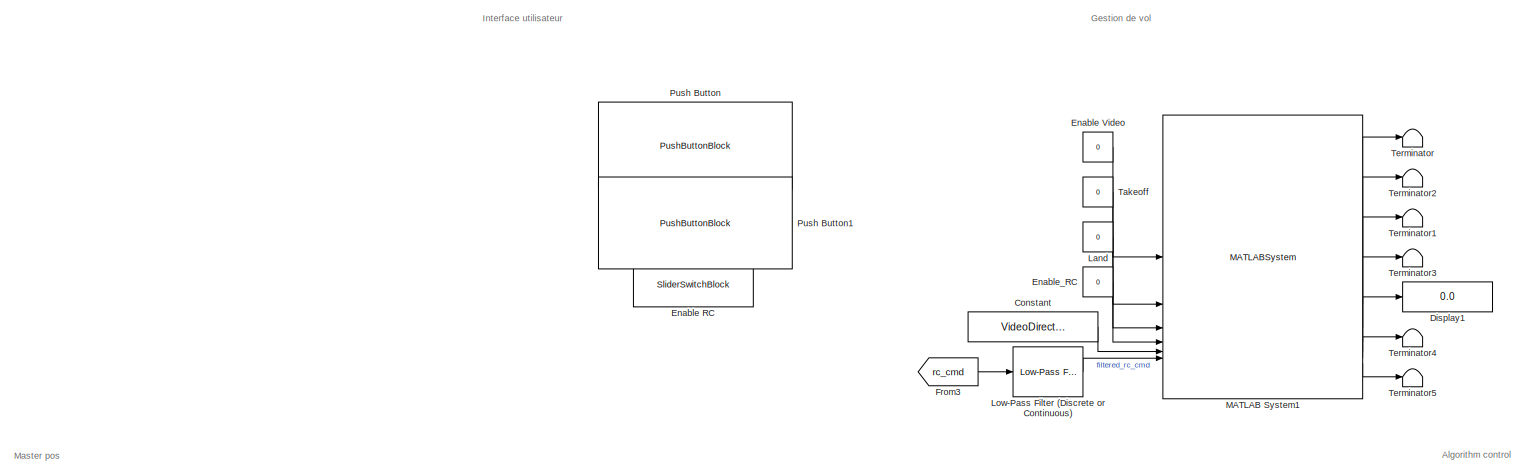
[diagram: root canvas - part 1/3, top center region]
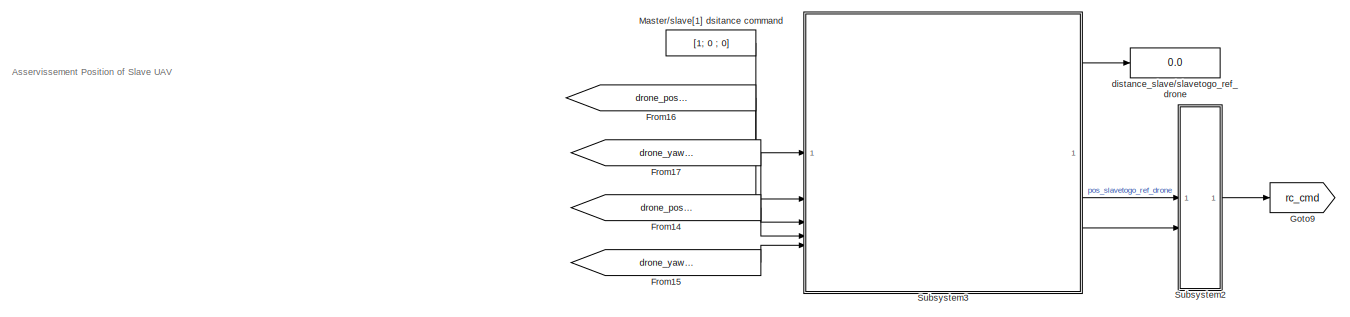
[diagram: root canvas - part 2/3, middle right region]
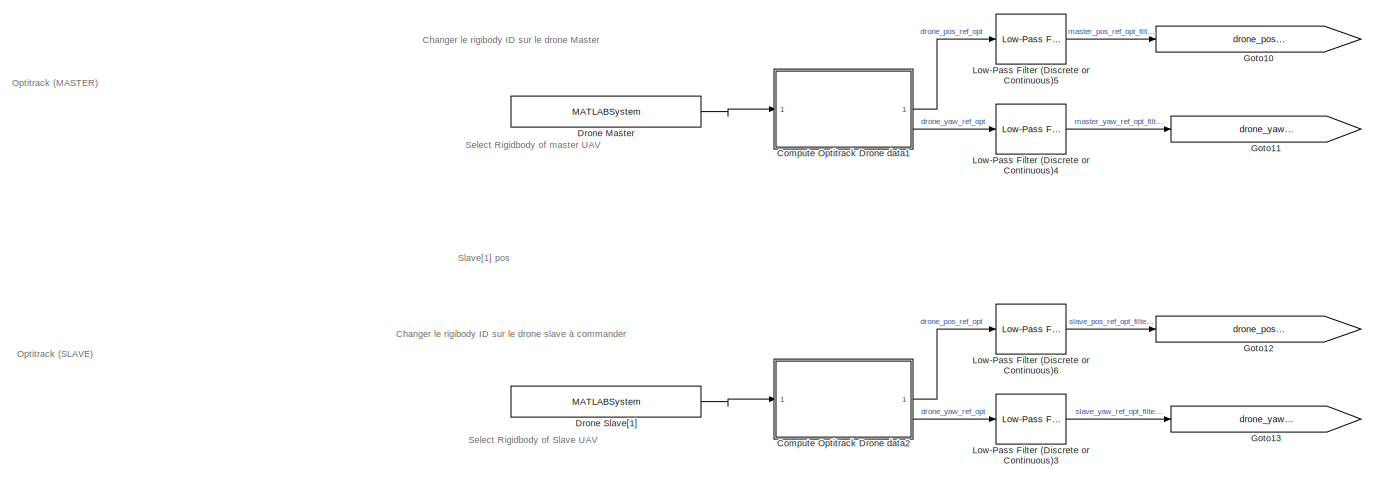
[diagram: root canvas - part 3/3, bottom left region]
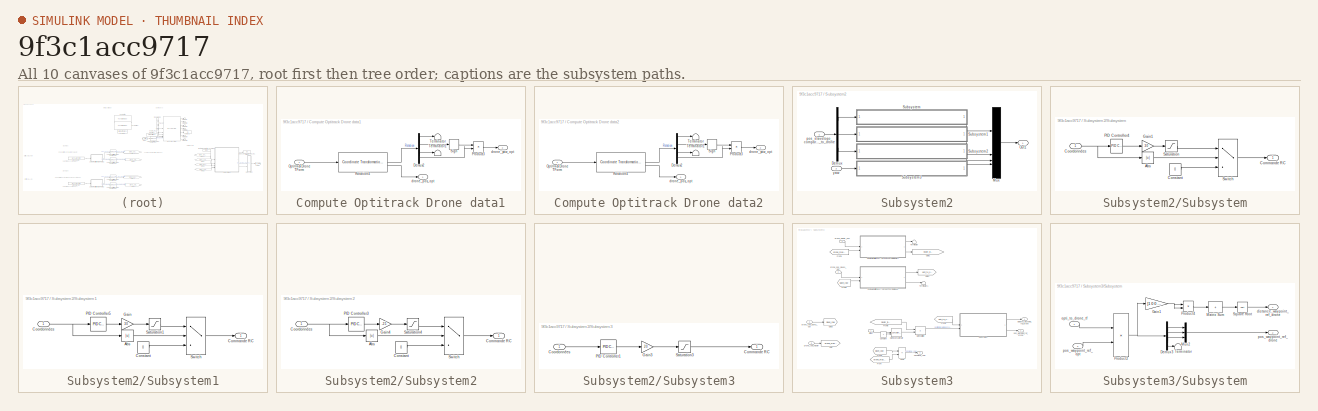
[diagram: thumbnail index - all 10 canvases of the model, root first then tree order]
MODEL slx_9f3c1acc9717
KIND model
CONFIG AbsTol = auto
CONFIG EnableMultiTasking = off
CONFIG FixedStep = 0.1
CONFIG MaxStep = auto
CONFIG MinStep = auto
CONFIG RelTol = 1e-3
CONFIG SampleTimeConstraint = Unconstrained
CONFIG SolverName = FixedStepAuto
CONFIG StartTime = 0.0
CONFIG StopTime = inf
BLOCK [SubSystem] Compute Optitrack Drone data1
BLOCK [Demux] Compute Optitrack Drone data1/Demux2
BLOCK [Inport] Compute Optitrack Drone data1/Optitrack Drone TForm
BLOCK [Product] Compute Optitrack Drone data1/Product3
BLOCK [Reference] Compute Optitrack Drone data1/Rotation4  REF=robotcorelib/Coordinate Transformation Conversion
  LibrarySourceBlock = uavutilslib/Coordinate Transformation Conversion
  SourceBlock = robotcorelib/Coordinate Transformation Conversion
  SourceType = robotics.slcore.internal.block.CoordinateTransformationConversion
BLOCK [Signum] Compute Optitrack Drone data1/Sign
BLOCK [Terminator] Compute Optitrack Drone data1/Terminator
BLOCK [Terminator] Compute Optitrack Drone data1/Terminator1
BLOCK [Outport] Compute Optitrack Drone data1/drone_pos_opt
BLOCK [Outport] Compute Optitrack Drone data1/drone_yaw_opt
  Port = 2
BLOCK [SubSystem] Compute Optitrack Drone data2
BLOCK [Demux] Compute Optitrack Drone data2/Demux2
BLOCK [Inport] Compute Optitrack Drone data2/Optitrack Drone TForm
BLOCK [Product] Compute Optitrack Drone data2/Product3
BLOCK [Reference] Compute Optitrack Drone data2/Rotation4  REF=robotcorelib/Coordinate Transformation Conversion
  LibrarySourceBlock = uavutilslib/Coordinate Transformation Conversion
  SourceBlock = robotcorelib/Coordinate Transformation Conversion
  SourceType = robotics.slcore.internal.block.CoordinateTransformationConversion
BLOCK [Signum] Compute Optitrack Drone data2/Sign
BLOCK [Terminator] Compute Optitrack Drone data2/Terminator
BLOCK [Terminator] Compute Optitrack Drone data2/Terminator1
BLOCK [Outport] Compute Optitrack Drone data2/drone_pos_opt
BLOCK [Outport] Compute Optitrack Drone data2/drone_yaw_opt
  Port = 2
BLOCK [Constant] Constant
  Value = VideoDirection.Forward
BLOCK [Display] Display1
  Decimation = 1
BLOCK [MATLABSystem] Drone Master
  ClientIP = 10.147.125.10
  HostIP = 10.147.125.15
  MaskDisplay = disp('OptilinkSystem');\nport_label('output',1,'Drones data');\nport_label('output',2,'Connected');
  MaskType = OptilinkSystem
  RigidbodyID = 1
  SimulateUsing = Interpreted execution
  System = OptilinkSystem
BLOCK [MATLABSystem] Drone Slave[1]
  ClientIP = 10.147.125.10
  HostIP = 10.147.125.15
  MaskDisplay = disp('OptilinkSystem');\nport_label('output',1,'Drones data');\nport_label('output',2,'Connected');
  MaskType = OptilinkSystem
  RigidbodyID = 3
  SimulateUsing = Interpreted execution
  System = OptilinkSystem
BLOCK [SliderSwitchBlock] Enable RC
BLOCK [Constant] Enable Video
  Value = 0
BLOCK [Constant] Enable_RC
  Value = 0
BLOCK [From] From14
  GotoTag = drone_pos_master_opt_filtered
BLOCK [From] From15
  GotoTag = drone_yaw_master_opt_filtered
BLOCK [From] From16
  GotoTag = drone_pos_slave1_opt_filtered
BLOCK [From] From17
  GotoTag = drone_yaw_slave1_opt_filtered
BLOCK [From] From3
  GotoTag = rc_cmd
BLOCK [Goto] Goto10
  GotoTag = drone_pos_master_opt_filtered
BLOCK [Goto] Goto11
  GotoTag = drone_yaw_master_opt_filtered
BLOCK [Goto] Goto12
  GotoTag = drone_pos_slave1_opt_filtered
BLOCK [Goto] Goto13
  GotoTag = drone_yaw_slave1_opt_filtered
BLOCK [Goto] Goto9
  GotoTag = rc_cmd
BLOCK [Constant] Land
  Value = 0
BLOCK [Reference] Low-Pass Filter (Discrete or Continuous)  REF=eeGeneralControl/Low-Pass Filter
(Discrete or Continuous)
  LibrarySourceBlock = ee_sl_lib/General Control/Low-Pass Filter\n(Discrete or Continuous)
  SourceBlock = eeGeneralControl/Low-Pass Filter\n(Discrete or Continuous)
  SourceType = Low-Pass Filter (Discrete or Continuous)
BLOCK [Reference] Low-Pass Filter (Discrete or Continuous)3  REF=eeGeneralControl/Low-Pass Filter
(Discrete or Continuous)
  LibrarySourceBlock = ee_sl_lib/General Control/Low-Pass Filter\n(Discrete or Continuous)
  SourceBlock = eeGeneralControl/Low-Pass Filter\n(Discrete or Continuous)
  SourceType = Low-Pass Filter (Discrete or Continuous)
BLOCK [Reference] Low-Pass Filter (Discrete or Continuous)4  REF=eeGeneralControl/Low-Pass Filter
(Discrete or Continuous)
  LibrarySourceBlock = ee_sl_lib/General Control/Low-Pass Filter\n(Discrete or Continuous)
  SourceBlock = eeGeneralControl/Low-Pass Filter\n(Discrete or Continuous)
  SourceType = Low-Pass Filter (Discrete or Continuous)
BLOCK [Reference] Low-Pass Filter (Discrete or Continuous)5  REF=eeGeneralControl/Low-Pass Filter
(Discrete or Continuous)
  LibrarySourceBlock = ee_sl_lib/General Control/Low-Pass Filter\n(Discrete or Continuous)
  SourceBlock = eeGeneralControl/Low-Pass Filter\n(Discrete or Continuous)
  SourceType = Low-Pass Filter (Discrete or Continuous)
BLOCK [Reference] Low-Pass Filter (Discrete or Continuous)6  REF=eeGeneralControl/Low-Pass Filter
(Discrete or Continuous)
  LibrarySourceBlock = ee_sl_lib/General Control/Low-Pass Filter\n(Discrete or Continuous)
  SourceBlock = eeGeneralControl/Low-Pass Filter\n(Discrete or Continuous)
  SourceType = Low-Pass Filter (Discrete or Continuous)
BLOCK [MATLABSystem] MATLAB System1
  MaskDisplay = disp('Tello_drone_control');\nport_label('input',1,'enableVideo');\nport_label('input',2,'tkoff');\nport_label('input',3,'landing');\nport_label('input',4,'enableRC');\nport_label('input',5,'cmdVideoDirection');\nport_label('input',6,'rcspeeds');\nport_label('output',1,'imageFront');\nport_label('output',2,'imageDown');\nport_label('output',3,'Eulerangles');\nport_label('output',4,'speedXYZ');\nport_label('o...<+117ch>
  MaskType = Tello_drone_control
  SimulateUsing = Interpreted execution
  System = Tello_drone_control
  droneIP = 127.0.0.1
BLOCK [Constant] Master//slave[1] dsitance command
  Value = [1; 0 ; 0]
BLOCK [PushButtonBlock] Push Button
  ButtonText = Décoler
  OffValue = 0.000000
BLOCK [PushButtonBlock] Push Button1
  ButtonText = Atterir
  OffValue = 0.000000
BLOCK [SubSystem] Subsystem2
BLOCK [Demux] Subsystem2/Demux
  Outputs = 3
BLOCK [Mux] Subsystem2/Mux
  DisplayOption = bar
BLOCK [Outport] Subsystem2/Out1
BLOCK [SubSystem] Subsystem2/Subsystem
BLOCK [Abs] Subsystem2/Subsystem/Abs
  SaturateOnIntegerOverflow = off
BLOCK [Outport] Subsystem2/Subsystem/Commande RC
BLOCK [Constant] Subsystem2/Subsystem/Constant
  Value = 0
BLOCK [Inport] Subsystem2/Subsystem/Coordonnées
BLOCK [Gain] Subsystem2/Subsystem/Gain1
  Gain = 30
BLOCK [Reference] Subsystem2/Subsystem/PID Controller4  REF=slpidlib/PID Controller
  LibrarySourceBlock = simulink/Continuous/PID Controller
  SourceBlock = slpidlib/PID Controller
  SourceType = PID 1dof
BLOCK [Saturate] Subsystem2/Subsystem/Saturation
  LowerLimit = -20
  UpperLimit = 20
BLOCK [Switch] Subsystem2/Subsystem/Switch
  Criteria = u2 > Threshold
  InputSameDT = off
  SaturateOnIntegerOverflow = off
  Threshold = 0.01
BLOCK [SubSystem] Subsystem2/Subsystem1
BLOCK [Abs] Subsystem2/Subsystem1/Abs
  SaturateOnIntegerOverflow = off
BLOCK [Outport] Subsystem2/Subsystem1/Commande RC
BLOCK [Constant] Subsystem2/Subsystem1/Constant
  Value = 0
BLOCK [Inport] Subsystem2/Subsystem1/Coordonnées
BLOCK [Gain] Subsystem2/Subsystem1/Gain
  Gain = 30
BLOCK [Reference] Subsystem2/Subsystem1/PID Controller5  REF=slpidlib/PID Controller
  LibrarySourceBlock = simulink/Continuous/PID Controller
  SourceBlock = slpidlib/PID Controller
  SourceType = PID 1dof
BLOCK [Saturate] Subsystem2/Subsystem1/Saturation1
  LowerLimit = -20
  UpperLimit = 20
BLOCK [Switch] Subsystem2/Subsystem1/Switch
  Criteria = u2 > Threshold
  InputSameDT = off
  SaturateOnIntegerOverflow = off
  Threshold = 0.01
BLOCK [SubSystem] Subsystem2/Subsystem2
BLOCK [Abs] Subsystem2/Subsystem2/Abs
  SaturateOnIntegerOverflow = off
BLOCK [Outport] Subsystem2/Subsystem2/Commande RC
BLOCK [Constant] Subsystem2/Subsystem2/Constant
  Value = 0
BLOCK [Inport] Subsystem2/Subsystem2/Coordonnées
BLOCK [Gain] Subsystem2/Subsystem2/Gain4
  Gain = -25
BLOCK [Reference] Subsystem2/Subsystem2/PID Controller3  REF=slpidlib/PID Controller
  LibrarySourceBlock = simulink/Continuous/PID Controller
  SourceBlock = slpidlib/PID Controller
  SourceType = PID 1dof
BLOCK [Saturate] Subsystem2/Subsystem2/Saturation4
  LowerLimit = -20
  UpperLimit = 20
BLOCK [Switch] Subsystem2/Subsystem2/Switch
  Criteria = u2 > Threshold
  InputSameDT = off
  SaturateOnIntegerOverflow = off
  Threshold = 0.01
BLOCK [SubSystem] Subsystem2/Subsystem3
BLOCK [Outport] Subsystem2/Subsystem3/Commande RC
BLOCK [Inport] Subsystem2/Subsystem3/Coordonnées
BLOCK [Gain] Subsystem2/Subsystem3/Gain3
  Gain = 20
BLOCK [Reference] Subsystem2/Subsystem3/PID Controller1  REF=slpidlib/PID Controller
  LibrarySourceBlock = simulink/Continuous/PID Controller
  SourceBlock = slpidlib/PID Controller
  SourceType = PID 1dof
BLOCK [Saturate] Subsystem2/Subsystem3/Saturation3
  LowerLimit = -50
  UpperLimit = 50
BLOCK [Inport] Subsystem2/pos_slavetogo_compared_to_drone
BLOCK [Inport] Subsystem2/yaw
  Port = 2
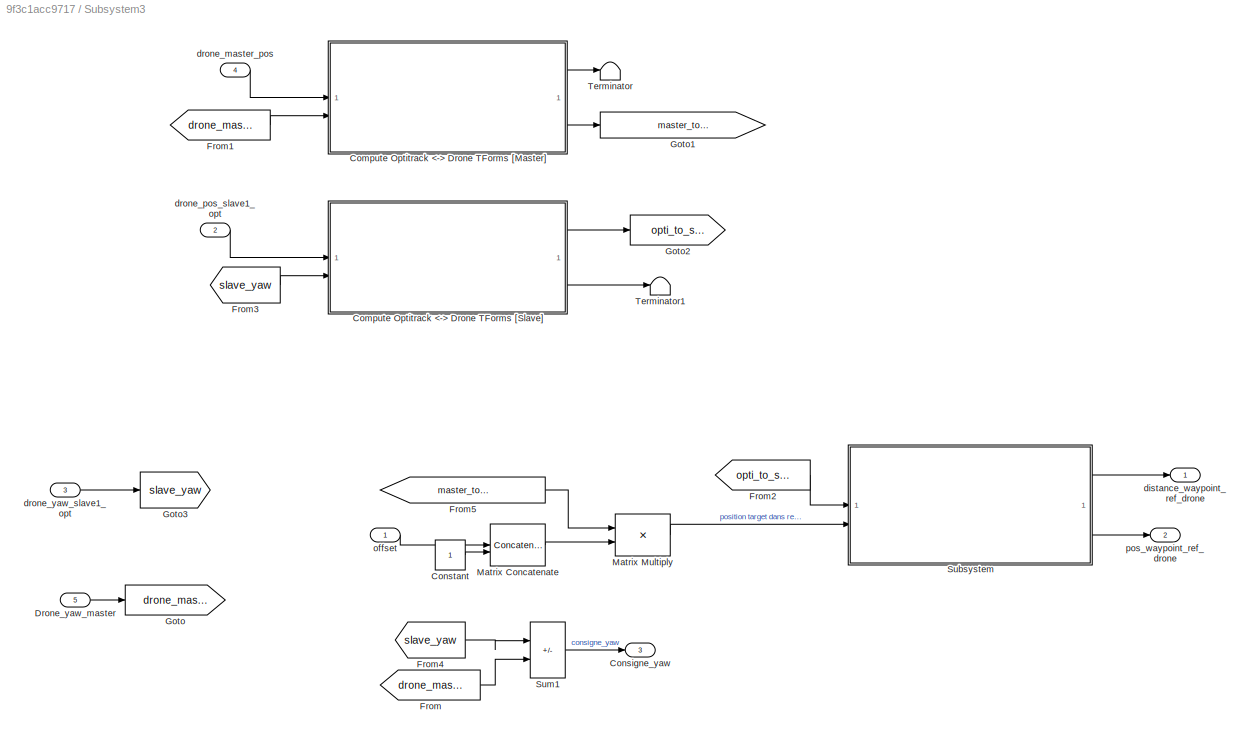
BLOCK [SubSystem] Subsystem3
BLOCK [SubSystem] Subsystem3/Compute Optitrack <-> Drone TForms [Master]
  ReferencedSubsystem = Compute_Optitrack_Drone_TForms
BLOCK [SubSystem] Subsystem3/Compute Optitrack <-> Drone TForms [Slave]
  ReferencedSubsystem = Compute_Optitrack_Drone_TForms
BLOCK [Outport] Subsystem3/Consigne_yaw
  Port = 3
BLOCK [Constant] Subsystem3/Constant
BLOCK [Inport] Subsystem3/Drone_yaw_master
  Port = 5
BLOCK [From] Subsystem3/From
  GotoTag = drone_master_yaw
BLOCK [From] Subsystem3/From1
  GotoTag = drone_master_yaw
BLOCK [From] Subsystem3/From2
  GotoTag = opti_to_slave_tf
BLOCK [From] Subsystem3/From3
  GotoTag = slave_yaw
BLOCK [From] Subsystem3/From4
  GotoTag = slave_yaw
BLOCK [From] Subsystem3/From5
  GotoTag = master_to_opti_tf
BLOCK [Goto] Subsystem3/Goto
  GotoTag = drone_master_yaw
BLOCK [Goto] Subsystem3/Goto1
  GotoTag = master_to_opti_tf
BLOCK [Goto] Subsystem3/Goto2
  GotoTag = opti_to_slave_tf
BLOCK [Goto] Subsystem3/Goto3
  GotoTag = slave_yaw
BLOCK [Concatenate] Subsystem3/Matrix Concatenate
  ConcatenateDimension = 2
BLOCK [Product] Subsystem3/Matrix Multiply
  Multiplication = Matrix(*)
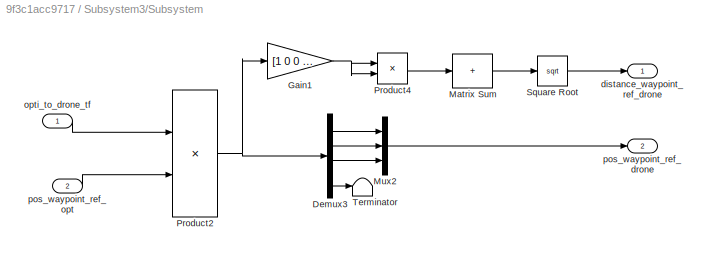
BLOCK [SubSystem] Subsystem3/Subsystem
BLOCK [Demux] Subsystem3/Subsystem/Demux3
BLOCK [Gain] Subsystem3/Subsystem/Gain1
  Gain = [1 0 0 0; 0 1 0 0; 0 0 0 0; 0 0 0 0]
  Multiplication = Matrix(K*u)
BLOCK [Sum] Subsystem3/Subsystem/Matrix Sum
  IconShape = rectangular
  Inputs = +
BLOCK [Mux] Subsystem3/Subsystem/Mux2
  DisplayOption = bar
  Inputs = 3
BLOCK [Product] Subsystem3/Subsystem/Product2
  Multiplication = Matrix(*)
BLOCK [Product] Subsystem3/Subsystem/Product4
BLOCK [Sqrt] Subsystem3/Subsystem/Square Root
BLOCK [Terminator] Subsystem3/Subsystem/Terminator
BLOCK [Outport] Subsystem3/Subsystem/distance_waypoint_ref_drone
BLOCK [Inport] Subsystem3/Subsystem/opti_to_drone_tf
BLOCK [Outport] Subsystem3/Subsystem/pos_waypoint_ref_drone
  Port = 2
BLOCK [Inport] Subsystem3/Subsystem/pos_waypoint_ref_opt
  Port = 2
BLOCK [Sum] Subsystem3/Sum1
  IconShape = rectangular
  Inputs = |+-
BLOCK [Terminator] Subsystem3/Terminator
BLOCK [Terminator] Subsystem3/Terminator1
BLOCK [Outport] Subsystem3/distance_waypoint_ref_drone
BLOCK [Inport] Subsystem3/drone_master_pos
  Port = 4
BLOCK [Inport] Subsystem3/drone_pos_slave1_opt
  Port = 2
BLOCK [Inport] Subsystem3/drone_yaw_slave1_opt
  Port = 3
BLOCK [Inport] Subsystem3/offset
BLOCK [Outport] Subsystem3/pos_waypoint_ref_drone
  Port = 2
BLOCK [Constant] Takeoff
  Value = 0
BLOCK [Terminator] Terminator
BLOCK [Terminator] Terminator1
BLOCK [Terminator] Terminator2
BLOCK [Terminator] Terminator3
BLOCK [Terminator] Terminator4
BLOCK [Terminator] Terminator5
BLOCK [Display] distance_slave//slavetogo_ref_drone
  Decimation = 1
ANNOTATION (root): Asservissement Position of Slave UAV
ANNOTATION (root): Gestion de vol
ANNOTATION (root): Interface utilisateur
ANNOTATION (root): Optitrack (MASTER)
ANNOTATION (root): Optitrack (SLAVE)
ANNOTATION (root): Algorithm control
ANNOTATION (root): Changer le rigibody ID sur le drone Master
ANNOTATION (root): Changer le rigibody ID sur le drone slave à commander
ANNOTATION (root): Master pos
ANNOTATION (root): Select Rigidbody of Slave UAV
ANNOTATION (root): Select Rigidbody of master UAV
ANNOTATION (root): Slave[1] pos
LINE Compute Optitrack Drone data1/Demux2:1 -> Compute Optitrack Drone data1/Terminator:1
LINE Compute Optitrack Drone data1/Demux2:2 -> Compute Optitrack Drone data1/Sign:1
LINE Compute Optitrack Drone data1/Demux2:3 -> Compute Optitrack Drone data1/Terminator1:1
LINE Compute Optitrack Drone data1/Demux2:4 -> Compute Optitrack Drone data1/Product3:2
LINE Compute Optitrack Drone data1/Optitrack Drone TForm:1 -> Compute Optitrack Drone data1/Rotation4:1
LINE Compute Optitrack Drone data1/Product3:1 -> Compute Optitrack Drone data1/drone_yaw_opt:1
LINE Compute Optitrack Drone data1/Rotation4:1 -> Compute Optitrack Drone data1/Demux2:1
LINE Compute Optitrack Drone data1/Rotation4:2 -> Compute Optitrack Drone data1/drone_pos_opt:1
LINE Compute Optitrack Drone data1/Sign:1 -> Compute Optitrack Drone data1/Product3:1
LINE Compute Optitrack Drone data1:1 -> Low-Pass Filter (Discrete or Continuous)5:1
LINE Compute Optitrack Drone data1:2 -> Low-Pass Filter (Discrete or Continuous)4:1
LINE Compute Optitrack Drone data2/Demux2:1 -> Compute Optitrack Drone data2/Terminator:1
LINE Compute Optitrack Drone data2/Demux2:2 -> Compute Optitrack Drone data2/Sign:1
LINE Compute Optitrack Drone data2/Demux2:3 -> Compute Optitrack Drone data2/Terminator1:1
LINE Compute Optitrack Drone data2/Demux2:4 -> Compute Optitrack Drone data2/Product3:2
LINE Compute Optitrack Drone data2/Optitrack Drone TForm:1 -> Compute Optitrack Drone data2/Rotation4:1
LINE Compute Optitrack Drone data2/Product3:1 -> Compute Optitrack Drone data2/drone_yaw_opt:1
LINE Compute Optitrack Drone data2/Rotation4:1 -> Compute Optitrack Drone data2/Demux2:1
LINE Compute Optitrack Drone data2/Rotation4:2 -> Compute Optitrack Drone data2/drone_pos_opt:1
LINE Compute Optitrack Drone data2/Sign:1 -> Compute Optitrack Drone data2/Product3:1
LINE Compute Optitrack Drone data2:1 -> Low-Pass Filter (Discrete or Continuous)6:1
LINE Compute Optitrack Drone data2:2 -> Low-Pass Filter (Discrete or Continuous)3:1
LINE Constant:1 -> MATLAB System1:5
LINE Drone Master:1 -> Compute Optitrack Drone data1:1
LINE Drone Slave[1]:1 -> Compute Optitrack Drone data2:1
LINE Enable Video:1 -> MATLAB System1:1
LINE Enable_RC:1 -> MATLAB System1:4
LINE From14:1 -> Subsystem3:4
LINE From15:1 -> Subsystem3:5
LINE From16:1 -> Subsystem3:2
LINE From17:1 -> Subsystem3:3
LINE From3:1 -> Low-Pass Filter (Discrete or Continuous):1
LINE Land:1 -> MATLAB System1:3
LINE Low-Pass Filter (Discrete or Continuous)3:1 -> Goto13:1
LINE Low-Pass Filter (Discrete or Continuous)4:1 -> Goto11:1
LINE Low-Pass Filter (Discrete or Continuous)5:1 -> Goto10:1
LINE Low-Pass Filter (Discrete or Continuous)6:1 -> Goto12:1
LINE Low-Pass Filter (Discrete or Continuous):1 -> MATLAB System1:6
LINE MATLAB System1:1 -> Terminator:1
LINE MATLAB System1:2 -> Terminator2:1
LINE MATLAB System1:3 -> Terminator1:1
LINE MATLAB System1:4 -> Terminator3:1
LINE MATLAB System1:5 -> Display1:1
LINE MATLAB System1:6 -> Terminator4:1
LINE MATLAB System1:7 -> Terminator5:1
LINE Master//slave[1] dsitance command:1 -> Subsystem3:1
LINE Subsystem2/Demux:1 -> Subsystem2/Subsystem:1
LINE Subsystem2/Demux:2 -> Subsystem2/Subsystem1:1
LINE Subsystem2/Demux:3 -> Subsystem2/Subsystem2:1
LINE Subsystem2/Mux:1 -> Subsystem2/Out1:1
LINE Subsystem2/Subsystem/Abs:1 -> Subsystem2/Subsystem/Switch:2
LINE Subsystem2/Subsystem/Constant:1 -> Subsystem2/Subsystem/Switch:3
NET Subsystem2/Subsystem/Coordonnées:1 -> Subsystem2/Subsystem/Abs:1, Subsystem2/Subsystem/PID Controller4:1
LINE Subsystem2/Subsystem/Gain1:1 -> Subsystem2/Subsystem/Saturation:1
LINE Subsystem2/Subsystem/PID Controller4:1 -> Subsystem2/Subsystem/Gain1:1
LINE Subsystem2/Subsystem/Saturation:1 -> Subsystem2/Subsystem/Switch:1
LINE Subsystem2/Subsystem/Switch:1 -> Subsystem2/Subsystem/Commande RC:1
LINE Subsystem2/Subsystem1/Abs:1 -> Subsystem2/Subsystem1/Switch:2
LINE Subsystem2/Subsystem1/Constant:1 -> Subsystem2/Subsystem1/Switch:3
NET Subsystem2/Subsystem1/Coordonnées:1 -> Subsystem2/Subsystem1/Abs:1, Subsystem2/Subsystem1/PID Controller5:1
LINE Subsystem2/Subsystem1/Gain:1 -> Subsystem2/Subsystem1/Saturation1:1
LINE Subsystem2/Subsystem1/PID Controller5:1 -> Subsystem2/Subsystem1/Gain:1
LINE Subsystem2/Subsystem1/Saturation1:1 -> Subsystem2/Subsystem1/Switch:1
LINE Subsystem2/Subsystem1/Switch:1 -> Subsystem2/Subsystem1/Commande RC:1
LINE Subsystem2/Subsystem1:1 -> Subsystem2/Mux:2
LINE Subsystem2/Subsystem2/Abs:1 -> Subsystem2/Subsystem2/Switch:2
LINE Subsystem2/Subsystem2/Constant:1 -> Subsystem2/Subsystem2/Switch:3
NET Subsystem2/Subsystem2/Coordonnées:1 -> Subsystem2/Subsystem2/Abs:1, Subsystem2/Subsystem2/PID Controller3:1
LINE Subsystem2/Subsystem2/Gain4:1 -> Subsystem2/Subsystem2/Saturation4:1
LINE Subsystem2/Subsystem2/PID Controller3:1 -> Subsystem2/Subsystem2/Gain4:1
LINE Subsystem2/Subsystem2/Saturation4:1 -> Subsystem2/Subsystem2/Switch:1
LINE Subsystem2/Subsystem2/Switch:1 -> Subsystem2/Subsystem2/Commande RC:1
LINE Subsystem2/Subsystem2:1 -> Subsystem2/Mux:3
LINE Subsystem2/Subsystem3/Coordonnées:1 -> Subsystem2/Subsystem3/PID Controller1:1
LINE Subsystem2/Subsystem3/Gain3:1 -> Subsystem2/Subsystem3/Saturation3:1
LINE Subsystem2/Subsystem3/PID Controller1:1 -> Subsystem2/Subsystem3/Gain3:1
LINE Subsystem2/Subsystem3/Saturation3:1 -> Subsystem2/Subsystem3/Commande RC:1
LINE Subsystem2/Subsystem3:1 -> Subsystem2/Mux:4
LINE Subsystem2/Subsystem:1 -> Subsystem2/Mux:1
LINE Subsystem2/pos_slavetogo_compared_to_drone:1 -> Subsystem2/Demux:1
LINE Subsystem2/yaw:1 -> Subsystem2/Subsystem3:1
LINE Subsystem2:1 -> Goto9:1
LINE Subsystem3/Compute Optitrack <-> Drone TForms [Master]:1 -> Subsystem3/Terminator:1
LINE Subsystem3/Compute Optitrack <-> Drone TForms [Master]:2 -> Subsystem3/Goto1:1
LINE Subsystem3/Compute Optitrack <-> Drone TForms [Slave]:1 -> Subsystem3/Goto2:1
LINE Subsystem3/Compute Optitrack <-> Drone TForms [Slave]:2 -> Subsystem3/Terminator1:1
LINE Subsystem3/Constant:1 -> Subsystem3/Matrix Concatenate:2
LINE Subsystem3/Drone_yaw_master:1 -> Subsystem3/Goto:1
LINE Subsystem3/From1:1 -> Subsystem3/Compute Optitrack <-> Drone TForms [Master]:2
LINE Subsystem3/From2:1 -> Subsystem3/Subsystem:1
LINE Subsystem3/From3:1 -> Subsystem3/Compute Optitrack <-> Drone TForms [Slave]:2
LINE Subsystem3/From4:1 -> Subsystem3/Sum1:1
LINE Subsystem3/From5:1 -> Subsystem3/Matrix Multiply:1
LINE Subsystem3/From:1 -> Subsystem3/Sum1:2
LINE Subsystem3/Matrix Concatenate:1 -> Subsystem3/Matrix Multiply:2
LINE Subsystem3/Matrix Multiply:1 -> Subsystem3/Subsystem:2
LINE Subsystem3/Subsystem/Demux3:1 -> Subsystem3/Subsystem/Mux2:1
LINE Subsystem3/Subsystem/Demux3:2 -> Subsystem3/Subsystem/Mux2:2
LINE Subsystem3/Subsystem/Demux3:3 -> Subsystem3/Subsystem/Mux2:3
LINE Subsystem3/Subsystem/Demux3:4 -> Subsystem3/Subsystem/Terminator:1
NET Subsystem3/Subsystem/Gain1:1 -> Subsystem3/Subsystem/Product4:1, Subsystem3/Subsystem/Product4:2
LINE Subsystem3/Subsystem/Matrix Sum:1 -> Subsystem3/Subsystem/Square Root:1
LINE Subsystem3/Subsystem/Mux2:1 -> Subsystem3/Subsystem/pos_waypoint_ref_drone:1
NET Subsystem3/Subsystem/Product2:1 -> Subsystem3/Subsystem/Demux3:1, Subsystem3/Subsystem/Gain1:1
LINE Subsystem3/Subsystem/Product4:1 -> Subsystem3/Subsystem/Matrix Sum:1
LINE Subsystem3/Subsystem/Square Root:1 -> Subsystem3/Subsystem/distance_waypoint_ref_drone:1
LINE Subsystem3/Subsystem/opti_to_drone_tf:1 -> Subsystem3/Subsystem/Product2:1
LINE Subsystem3/Subsystem/pos_waypoint_ref_opt:1 -> Subsystem3/Subsystem/Product2:2
LINE Subsystem3/Subsystem:1 -> Subsystem3/distance_waypoint_ref_drone:1
LINE Subsystem3/Subsystem:2 -> Subsystem3/pos_waypoint_ref_drone:1
LINE Subsystem3/Sum1:1 -> Subsystem3/Consigne_yaw:1
LINE Subsystem3/drone_master_pos:1 -> Subsystem3/Compute Optitrack <-> Drone TForms [Master]:1
LINE Subsystem3/drone_pos_slave1_opt:1 -> Subsystem3/Compute Optitrack <-> Drone TForms [Slave]:1
LINE Subsystem3/drone_yaw_slave1_opt:1 -> Subsystem3/Goto3:1
LINE Subsystem3/offset:1 -> Subsystem3/Matrix Concatenate:1
LINE Subsystem3:1 -> distance_slave//slavetogo_ref_drone:1
LINE Subsystem3:2 -> Subsystem2:1
LINE Subsystem3:3 -> Subsystem2:2
LINE Takeoff:1 -> MATLAB System1:2
note: NET lines group one-source signal fan-out (src -> all destinations, sorted); 1:1 wires keep LINE
